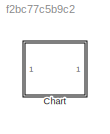
MODEL slx_f2bc77c5b9c2
KIND model
CONFIG AbsTol = auto
CONFIG EnableMultiTasking = off
CONFIG FixedStep = auto
CONFIG MaxStep = auto
CONFIG MinStep = auto
CONFIG RelTol = 1e-3
CONFIG SampleTimeConstraint = Unconstrained
CONFIG SolverName = VariableStepAuto
CONFIG StartTime = 0.0
CONFIG StopTime = 10.0
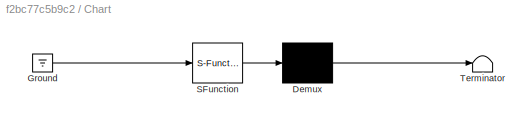
BLOCK [SubSystem] Chart
  ErrorFcn = Stateflow.Translate.translate
  PermitHierarchicalResolution = ExplicitOnly
  Ports = []
  RequestExecContextInheritance = off
  SFBlockType = Chart
  TreatAsAtomicUnit = on
BLOCK [Demux] Chart/ Demux 
  Outputs = 1
  Ports = [1, 1]
BLOCK [Ground] Chart/ Ground 
BLOCK [S-Function] Chart/ SFunction 
  EnableBusSupport = on
  FunctionName = sf_sfun
  PortCounts = [1 1]
  Ports = [1, 1]
  SFcnIsStateOwnerBlock = off
  SFunctionDeploymentMode = off
  Tag = Stateflow S-Function 3
BLOCK [Terminator] Chart/ Terminator 
CHART Chart states=7 transitions=5
  STATE_LABEL 'A\nen:fprintf("Entry A");\ndu:fprintf("During A");\nex:fprintf("Exit A");'
  STATE_LABEL 'A1\nen:fprintf("Entry A1");\ndu:fprintf("During A1");\nex:fprintf("Exit A1");\n'
  STATE_LABEL 'A1a\nen:fprintf("Entry A1a");\ndu:fprintf("During A1a");\nex:fprintf("Exit A1a");'
  STATE_LABEL 'A1b\nen:fprintf("Entry A1b");\ndu:fprintf("During A1b");\nex:fprintf("Exit A1b");'
  STATE_LABEL 'E_one{send(E_two)}'
  STATE_LABEL 'A2\nen:fprintf("Entry A2");\ndu:fprintf("During A2");\nex:fprintf("Exit A2");\n'
  STATE_LABEL 'A2a\nen:fprintf("Entry A2a");\ndu:fprintf("During A2a");\nex:fprintf("Exit A2a");'
  STATE_LABEL 'A1b\nen:fprintf("Entry A2b");\ndu:fprintf("During A2b");\nex:fprintf("Exit A2b");'
  STATE_LABEL 'E_two'
  STATE_LABEL 'A1\nen:fprintf("Entry A1");\ndu:fprintf("During A1");\nex:fprintf("Exit A1");\n'
  STATE_LABEL 'A1a\nen:fprintf("Entry A1a");\ndu:fprintf("During A1a");\nex:fprintf("Exit A1a");'
  STATE_LABEL 'A1b\nen:fprintf("Entry A1b");\ndu:fprintf("During A1b");\nex:fprintf("Exit A1b");'
  STATE_LABEL 'E_one{send(E_two)}'
  STATE_LABEL 'A1a\nen:fprintf("Entry A1a");\ndu:fprintf("During A1a");\nex:fprintf("Exit A1a");'
  STATE_LABEL 'A1b\nen:fprintf("Entry A1b");\ndu:fprintf("During A1b");\nex:fprintf("Exit A1b");'
  STATE_LABEL 'A2\nen:fprintf("Entry A2");\ndu:fprintf("During A2");\nex:fprintf("Exit A2");\n'
  STATE_LABEL 'A2a\nen:fprintf("Entry A2a");\ndu:fprintf("During A2a");\nex:fprintf("Exit A2a");'
  STATE_LABEL 'A1b\nen:fprintf("Entry A2b");\ndu:fprintf("During A2b");\nex:fprintf("Exit A2b");'
  STATE_LABEL 'E_two'
  STATE_LABEL 'A2a\nen:fprintf("Entry A2a");\ndu:fprintf("During A2a");\nex:fprintf("Exit A2a");'
  STATE_LABEL 'A1b\nen:fprintf("Entry A2b");\ndu:fprintf("During A2b");\nex:fprintf("Exit A2b");'
CHART  states=0 transitions=0
